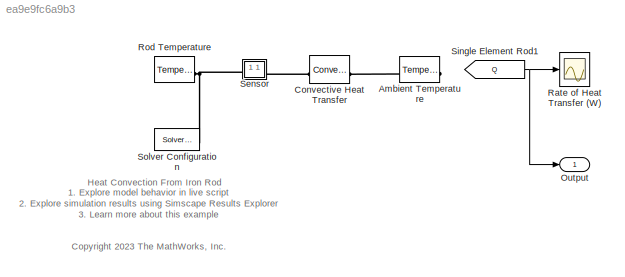
MODEL slx_ea9e9fc6a9b3
KIND model
CONFIG AbsTol = 1e-3
CONFIG EnableMultiTasking = on
CONFIG FixedStep = auto
CONFIG MaxStep = 100
CONFIG MinStep = auto
CONFIG PreLoadFcn = if ~exist('h', 'var')                      h= 32.1;       end % [W/(m^2*K)]\nif ~exist('D', 'var')                      D= 0.025;      end % [m]\nif ~exist('L', 'var')                      L= 0.2;        end % [m]\nif ~exist('A_cyl', 'var')                  A_cyl= pi*D*L; end % [m^2]\nif ~exist('T_cyl_uniform_case_2', 'var')   T_cyl_uniform_case_2= 55; end % [degC]\nif ~exist('T_air', 'var')           ...<+34ch>
CONFIG RelTol = 1e-3
CONFIG SampleTimeConstraint = Unconstrained
CONFIG SolverName = VariableStepAuto
CONFIG StartTime = 0.0
CONFIG StopTime = 5
BLOCK [Reference] Ambient Temperature  REF=fl_lib/Thermal/Thermal Sources/Temperature Source
  SourceBlock = fl_lib/Thermal/Thermal Sources/Temperature Source
  SourceType = Temperature Source
BLOCK [Reference] Convective Heat Transfer  REF=fl_lib/Thermal/Thermal Elements/Convective Heat
Transfer
  SourceBlock = fl_lib/Thermal/Thermal Elements/Convective Heat\nTransfer
  SourceType = Convective Heat\nTransfer
BLOCK [Outport] Output
BLOCK [Scope] Rate of Heat Transfer (W)
  Floating = off
  NumInputPorts = 1
  ScopeSpecificationString = Simulink.scopes.TimeScopeBlockCfg('CurrentConfiguration', extmgr.ConfigurationSet(extmgr.Configuration('Core','General UI',true,'FigureColor',[0.501960784313725 0.501960784313725 0.501960784313725]),extmgr.Configuration('Core','Source UI',true),extmgr.Configuration('Sources','WiredSimulink',true,'DataLoggingSaveFormat','StructureWithTime','DataLoggingLimitDataPoints',true,'DataLoggingDecimation','...<+2764ch>
  Tag = PublishScope
BLOCK [Reference] Rod Temperature  REF=fl_lib/Thermal/Thermal Sources/Temperature Source
  SourceBlock = fl_lib/Thermal/Thermal Sources/Temperature Source
  SourceType = Temperature Source
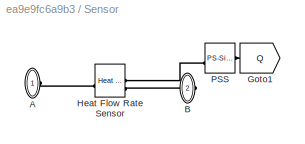
BLOCK [SubSystem] Sensor
BLOCK [PMIOPort] Sensor/A
  Side = Left
BLOCK [PMIOPort] Sensor/B
  Port = 2
  Side = Right
BLOCK [Goto] Sensor/Goto1
  GotoTag = Q
  Tag = CustomStyle
  TagVisibility = global
BLOCK [Reference] Sensor/Heat Flow Rate Sensor  REF=fl_lib/Thermal/Thermal Sensors/Heat Flow Rate
Sensor
  SourceBlock = fl_lib/Thermal/Thermal Sensors/Heat Flow Rate\nSensor
  SourceType = Heat Flow Rate\nSensor
BLOCK [Reference] Sensor/PSS  REF=nesl_utility/PS-Simulink
Converter
  SourceBlock = nesl_utility/PS-Simulink\nConverter
  SourceType = PS-Simulink\nConverter
BLOCK [From] Single Element Rod1
  GotoTag = Q
  Tag = CustomStyle
  TagVisibility = global
BLOCK [Reference] Solver Configuration  REF=nesl_utility/Solver
Configuration
  SourceBlock = nesl_utility/Solver\nConfiguration
  SourceType = Solver\nConfiguration
ANNOTATION (root): 1. Explore model behavior in live script 2. Explore simulation results using Simscape Results Explorer 3. Learn more about this example
ANNOTATION (root): <copyright redacted>
ANNOTATION (root): Heat Convection From Iron Rod
LINE Sensor/PSS:1 -> Sensor/Goto1:1
NET Single Element Rod1:1 -> Output:1, Rate of Heat Transfer (W):1
PLINE Ambient Temperature:LConn1 -- Convective Heat Transfer:RConn1
PLINE Convective Heat Transfer:LConn1 -- Sensor:RConn1
PNET net1: Rod Temperature:LConn1 -- Sensor:LConn1 -- Solver Configuration:RConn1
PLINE Sensor/A:RConn1 -- Sensor/Heat Flow Rate Sensor:LConn1
PLINE Sensor/B:RConn1 -- Sensor/Heat Flow Rate Sensor:RConn2
PLINE Sensor/Heat Flow Rate Sensor:RConn1 -- Sensor/PSS:LConn1
note: NET lines group one-source signal fan-out (src -> all destinations, sorted); 1:1 wires keep LINE; PNET lines group multi-terminal physical nets as a canonical sorted terminal list (undirected conserving connections); 2-terminal nets keep the pairwise PLINE form
